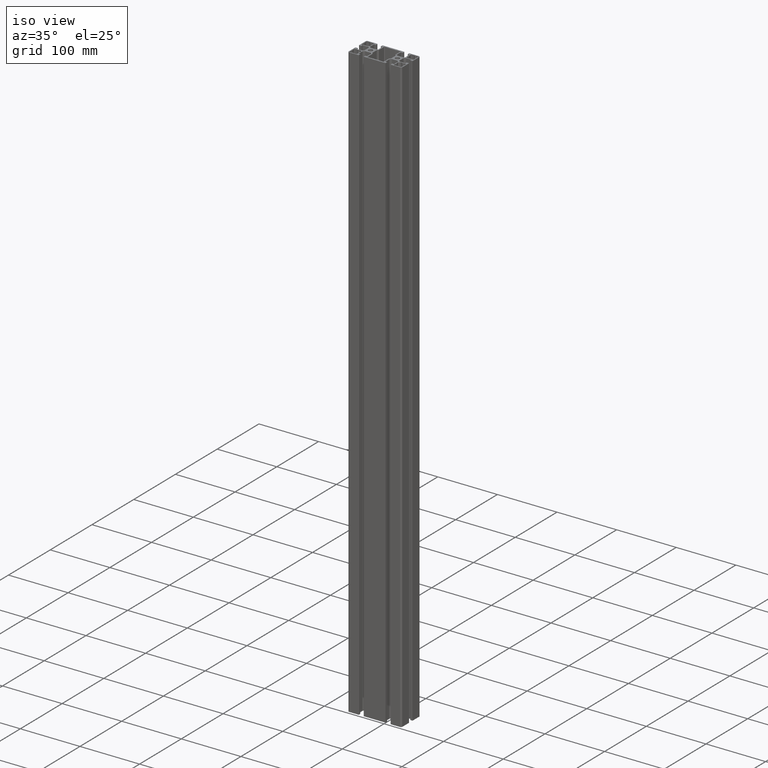
[diagram: clean part render]
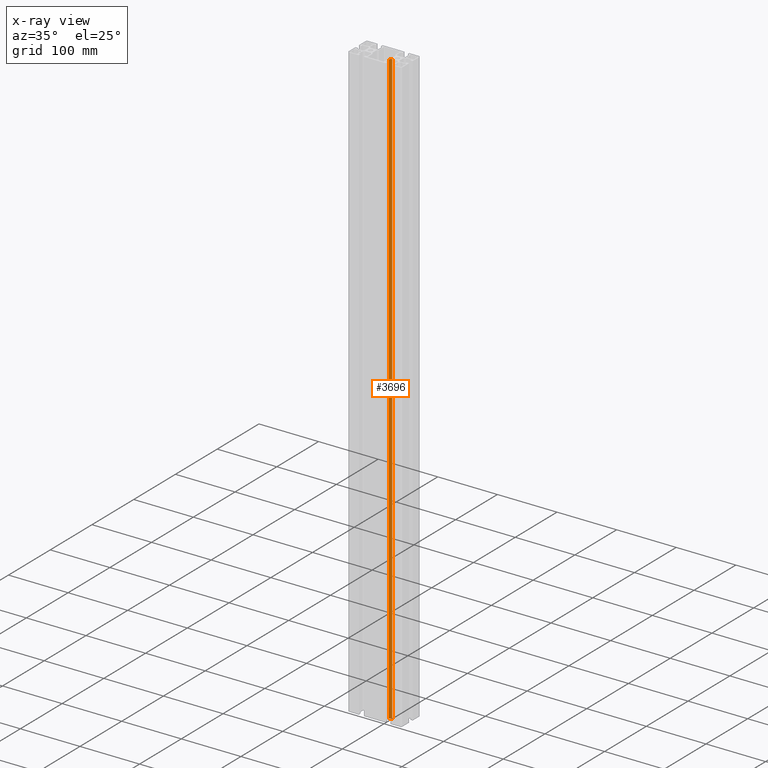
[diagram: x-ray — body ghosted, one internal face saturated and labeled with its STEP entity id]
A machine part, iso view, then the same camera in x-ray: the body is ghosted and one INTERNAL B-rep face — a face not visible from any outside direction — is saturated and labeled: STEP entity #3696.
In plain terms, the highlighted cylindrical surface (edge-blend (fillet) strip) has radius 3.2 mm, axis along (0, 0, 1).
Its self-contained STEP definition (entity closure, byte-faithful):
#230=FACE_OUTER_BOUND('',#432,.T.);
#432=EDGE_LOOP('',(#3155,#3156,#3157,#3158));
#818=LINE('',#6217,#1204);
#819=LINE('',#6219,#1205);
#1204=VECTOR('',#5009,10.);
#1205=VECTOR('',#5012,10.);
#1342=CIRCLE('',#3906,3.2);
#1445=CIRCLE('',#4018,3.2);
#1589=VERTEX_POINT('',#5609);
#1590=VERTEX_POINT('',#5611);
#1803=VERTEX_POINT('',#6066);
#1804=VERTEX_POINT('',#6068);
#1997=EDGE_CURVE('',#1590,#1589,#1342,.T.);
#2231=EDGE_CURVE('',#1803,#1804,#1445,.T.);
#2306=EDGE_CURVE('',#1589,#1804,#818,.T.);
#2307=EDGE_CURVE('',#1590,#1803,#819,.T.);
#3155=ORIENTED_EDGE('',*,*,#1997,.T.);
#3156=ORIENTED_EDGE('',*,*,#2306,.T.);
#3157=ORIENTED_EDGE('',*,*,#2231,.F.);
#3158=ORIENTED_EDGE('',*,*,#2307,.F.);
#3558=CYLINDRICAL_SURFACE('',#4079,3.2);
#3696=ADVANCED_FACE('',(#230),#3558,.F.);
#3906=AXIS2_PLACEMENT_3D('',#5612,#4477,#4478);
#4018=AXIS2_PLACEMENT_3D('',#6069,#4832,#4833);
#4079=AXIS2_PLACEMENT_3D('',#6218,#5010,#5011);
#4477=DIRECTION('center_axis',(0.,0.,-1.));
#4478=DIRECTION('ref_axis',(0.,-1.,0.));
#4832=DIRECTION('center_axis',(0.,0.,-1.));
#4833=DIRECTION('ref_axis',(0.,-1.,0.));
#5009=DIRECTION('',(0.,0.,1.));
#5010=DIRECTION('center_axis',(0.,0.,1.));
#5011=DIRECTION('ref_axis',(0.,-1.,0.));
#5012=DIRECTION('',(0.,0.,1.));
#5609=CARTESIAN_POINT('',(18.55,-6.75,0.));
#5611=CARTESIAN_POINT('',(15.35,-9.95,0.));
#5612=CARTESIAN_POINT('Origin',(18.55,-9.95,0.));
#6066=CARTESIAN_POINT('',(15.35,-9.95,1000.));
#6068=CARTESIAN_POINT('',(18.55,-6.75,1000.));
#6069=CARTESIAN_POINT('Origin',(18.55,-9.95,1000.));
#6217=CARTESIAN_POINT('',(18.55,-6.75,0.));
#6218=CARTESIAN_POINT('Origin',(18.55,-9.95,0.));
#6219=CARTESIAN_POINT('',(15.35,-9.95,0.));